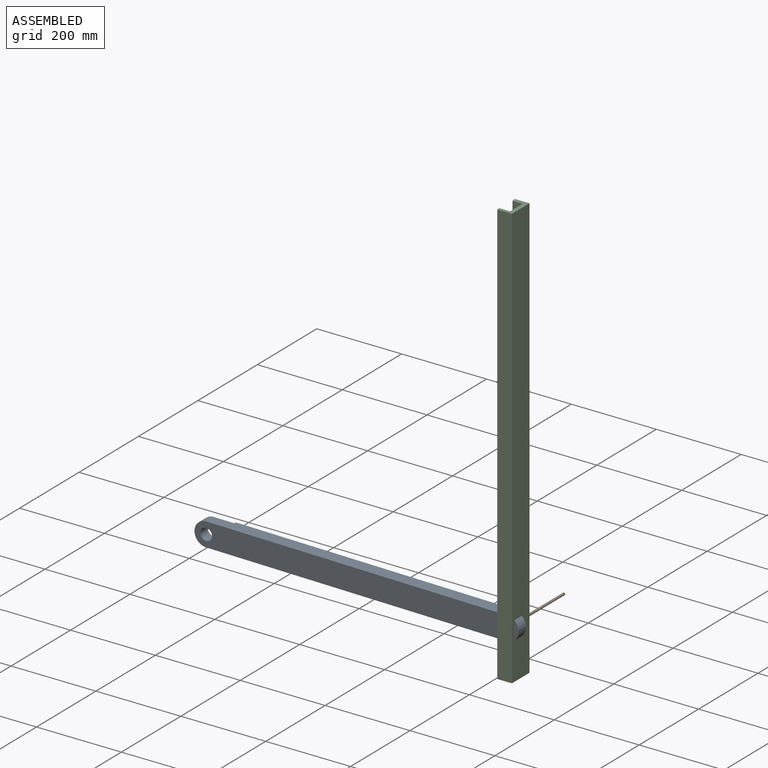
[diagram: assembled view]
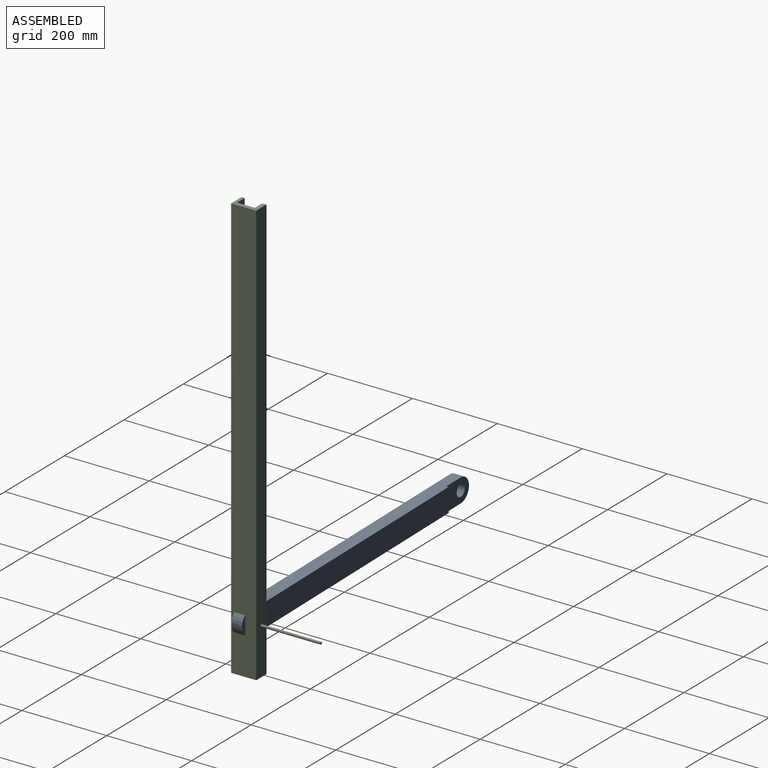
[diagram: assembled view, second angle]
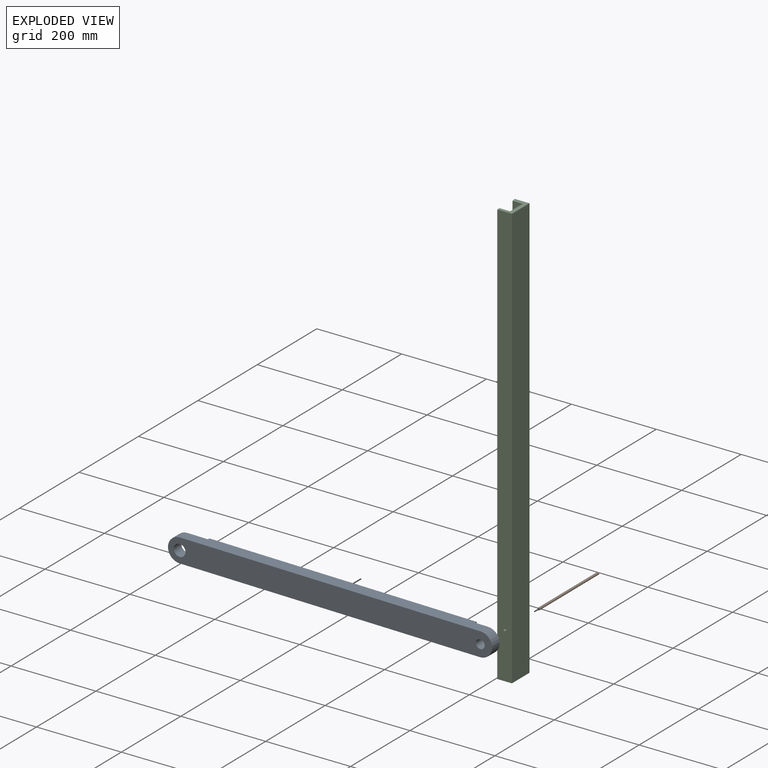
[diagram: exploded view]
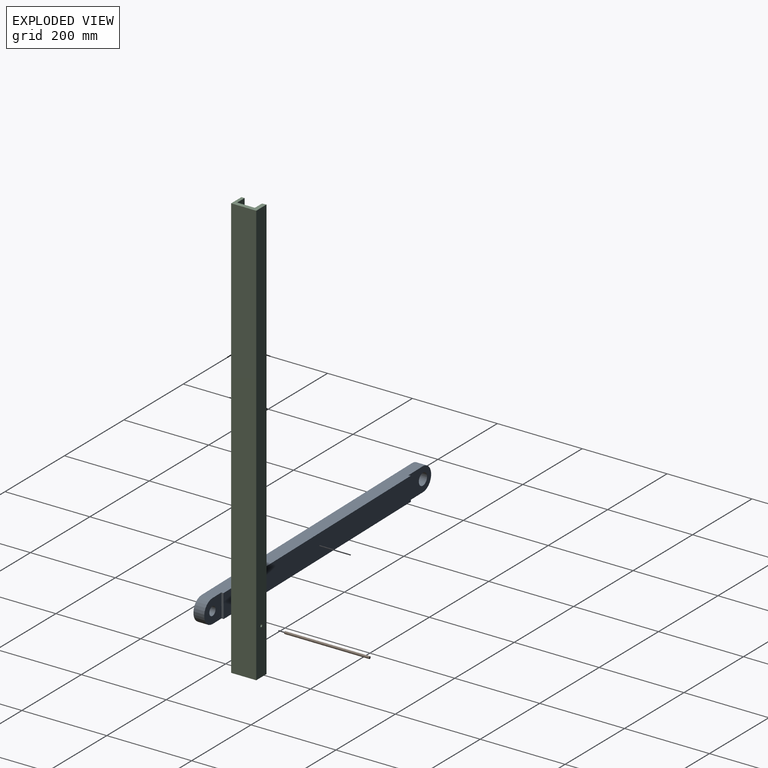
[diagram: exploded view, second angle]
ASSEMBLY  parts=3 mates=2
PART A: 12 faces, bbox 763.9x30.5x55.4 mm
  f0: plane 58.02x55.44mm, normal (0,-1,0), area 2547.2mm2, adj f1,f3,f4,f6,f10
  f1: plane 708.46x30.48mm, normal (0,0,1), area 21195.4mm2, adj f0,f2,f6,f7,f8,f9,f10,f11
  f2: cylinder r=27.72mm len=55.44mm, axis (0,1,0), area 2212.1mm2, adj f1,f3,f7,f8
  f3: plane 708.46x30.48mm, normal (0,0,-1), area 21195.4mm2, adj f0,f2,f6,f7,f8,f9,f10,f11
  f4: cylinder r=10.4mm len=25.4mm, axis (0,1,0), area 1659.4mm2, adj f0,f8
  f5: cylinder r=13.85mm len=27.7mm, axis (0,1,0), area 2210.4mm2, adj f7,f8
  f6: cylinder r=27.72mm len=55.44mm, axis (0,1,0), area 2212.1mm2, adj f0,f1,f3,f8
  f7: plane 75.84x55.44mm, normal (0,-1,0), area 3272.4mm2, adj f1,f2,f3,f5,f9
  f8: plane 763.9x55.44mm, normal (0,1,0), area 40751.9mm2, adj f1,f2,f3,f4,f5,f6
  f9: plane 55.44x5.08mm, normal (-1,0,0), area 281.7mm2, adj f1,f3,f7,f11
  f10: plane 55.44x5.08mm, normal (1,0,0), area 281.7mm2, adj f0,f1,f3,f11
  f11: plane 630.04x55.44mm, normal (0,-1,0), area 34932.4mm2, adj f1,f3,f9,f10
PART B: 4 faces, bbox 5.7x200x5.1 mm
  f0: plane 200x3.47mm, normal (0,0,1), area 693.3mm2, adj f1,f2,f3
  f1: cylinder r=2.84mm len=200mm, axis (0,1,0), area 2828.5mm2, adj f0,f2,f3
  f2: plane 5.69x5.1mm, normal (0,-1,0), area 24mm2, adj f0,f1
  f3: plane 5.69x5.1mm, normal (0,1,0), area 24mm2, adj f0,f1
PART C: 12 faces, bbox 59x1000x34.7 mm
  f0: plane 1000x23.9mm, normal (1,0,0), area 23865.7mm2, adj f1,f7,f8,f9,f11
  f1: plane 1000x9.84mm, normal (0.14,0,0.99), area 9940mm2, adj f0,f2,f8,f9
  f2: plane 1000x34.67mm, normal (-1,0,0), area 34643mm2, adj f1,f3,f8,f9,f11
  f3: plane 1000x59.04mm, normal (0,0,-1), area 59040.7mm2, adj f2,f4,f8,f9
  f4: plane 1000x34.67mm, normal (1,0,0), area 34643mm2, adj f3,f5,f8,f9,f10
  f5: plane 1000x7.5mm, normal (0,0,1), area 7497.2mm2, adj f4,f6,f8,f9
  f6: plane 1000x25.3mm, normal (-1,0,0), area 25271.5mm2, adj f5,f7,f8,f9,f10
  f7: plane 1000x41.7mm, normal (0,0,1), area 41703.3mm2, adj f0,f6,f8,f9
  f8: plane 59.04x34.67mm, normal (0,-1,0), area 985.1mm2, adj f0,f1,f2,f3,f4,f5,f6,f7
  f9: plane 59.04x34.67mm, normal (0,1,0), area 985.1mm2, adj f0,f1,f2,f3,f4,f5,f6,f7
  f10: cylinder r=3.17mm len=7.5mm, axis (1,0,0), area 149.6mm2, adj f4,f6
  f11: cylinder r=3.17mm len=9.84mm, axis (1,0,0), area 196.3mm2, adj f0,f2
PLACE A rot(axis=(1,0,-0.01),180deg) t=(-573.35,-336.54,-450.88)mm
PLACE B rot(axis=(0,-1,0),128.7deg) t=(-65.36,-144.04,-231.72)mm
PLACE C rot(axis=(0.58,-0.58,-0.58),120deg) t=(-148.27,-313.81,664.22)mm fixed
MATE revolute C.f10 <-> B.f1  axis (0,-1,0) through (-156.23,-344.04,-225.94)mm
MATE revolute A.f4 <-> C.f10  axis (0,-1,0) through (-156.23,-336.54,-225.94)mm
